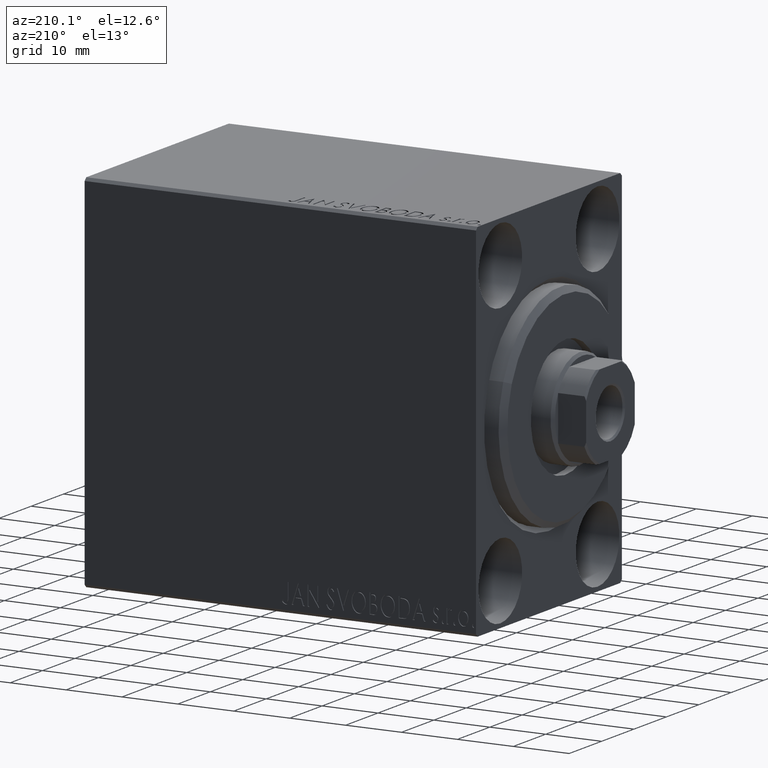
[diagram: clean part render]
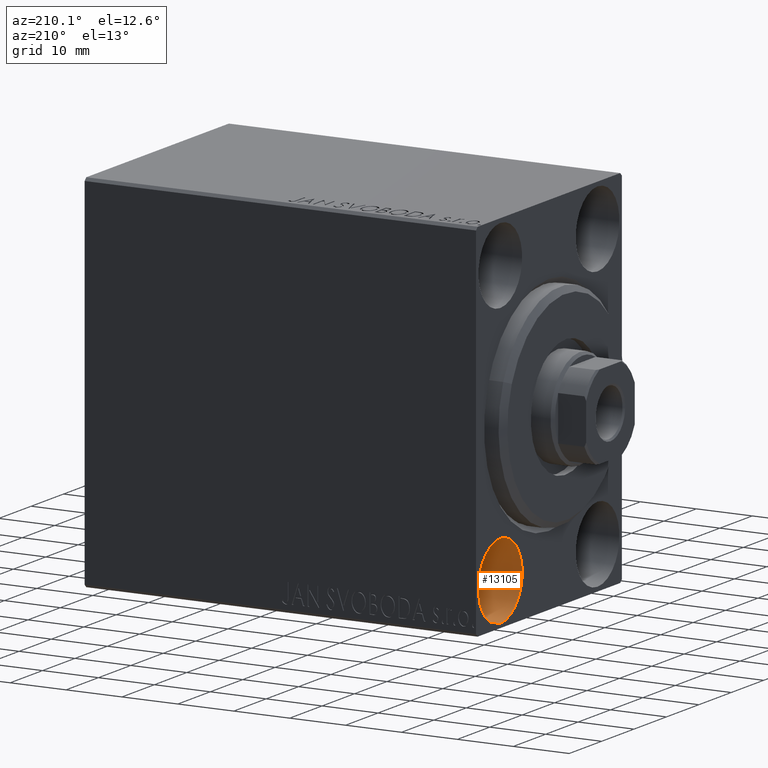
[diagram: same view with one face highlighted and labeled with its STEP entity id]
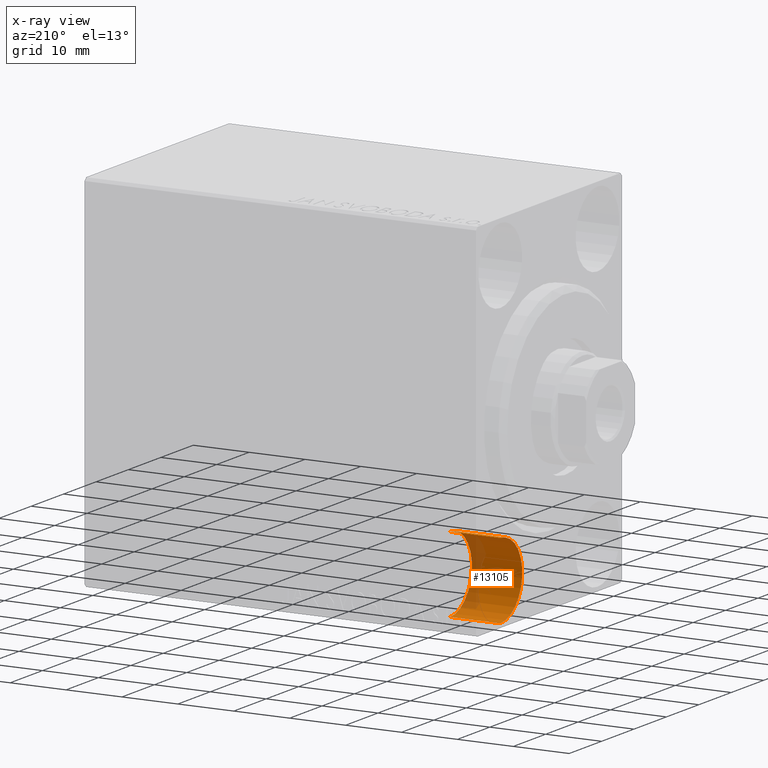
[diagram: x-ray of the same camera — body ghosted, the highlighted face saturated]
A machine part, auxiliary view. The second image highlights one B-rep face of the part: STEP entity #13105.
The next image is the same camera in x-ray: the body ghosted, the highlighted face saturated — about 20% of this face is hidden behind the body in this view.
In plain terms, the highlighted cylindrical surface (partial cylindrical patch) has radius 6.75 mm, axis along (-1, -0, -0).
Its self-contained STEP definition (entity closure, byte-faithful):
#532 = ORIENTED_EDGE ( 'NONE', *, *, #2408, .F. ) ;
#1146 = DIRECTION ( 'NONE',  ( -1.000000000000000000, -0.000000000000000000, -0.000000000000000000 ) ) ;
#1171 = EDGE_CURVE ( 'NONE', #3589, #3817, #3220, .T. ) ;
#2408 = EDGE_CURVE ( 'NONE', #3817, #21852, #26377, .T. ) ;
#3220 = CIRCLE ( 'NONE', #20270, 6.749999999999999112 ) ;
#3589 = VERTEX_POINT ( 'NONE', #11713 ) ;
#3817 = VERTEX_POINT ( 'NONE', #22874 ) ;
#5393 = FACE_OUTER_BOUND ( 'NONE', #37919, .T. ) ;
#5504 = VECTOR ( 'NONE', #31291, 1000.000000000000000 ) ;
#6681 = CARTESIAN_POINT ( 'NONE',  ( 0.000000000000000000, 14.99999999999999645, -18.25000000000000355 ) ) ;
#7230 = ORIENTED_EDGE ( 'NONE', *, *, #36581, .T. ) ;
#8949 = CYLINDRICAL_SURFACE ( 'NONE', #11172, 6.749999999999999112 ) ;
#10624 = EDGE_CURVE ( 'NONE', #3589, #28342, #20838, .T. ) ;
#11172 = AXIS2_PLACEMENT_3D ( 'NONE', #18963, #1146, #24947 ) ;
#11713 = CARTESIAN_POINT ( 'NONE',  ( 9.000000000000000000, 14.99999999999999645, -31.75000000000000000 ) ) ;
#13105 = ADVANCED_FACE ( 'NONE', ( #5393 ), #8949, .F. ) ;
#14390 = AXIS2_PLACEMENT_3D ( 'NONE', #29540, #29316, #43325 ) ;
#18963 = CARTESIAN_POINT ( 'NONE',  ( 9.000000000000000000, 14.99999999999999645, -25.00000000000000000 ) ) ;
#20270 = AXIS2_PLACEMENT_3D ( 'NONE', #22745, #27330, #30658 ) ;
#20838 = LINE ( 'NONE', #25057, #5504 ) ;
#21852 = VERTEX_POINT ( 'NONE', #6681 ) ;
#22745 = CARTESIAN_POINT ( 'NONE',  ( 9.000000000000000000, 14.99999999999999645, -25.00000000000000000 ) ) ;
#22874 = CARTESIAN_POINT ( 'NONE',  ( 9.000000000000000000, 14.99999999999999645, -18.25000000000000355 ) ) ;
#24947 = DIRECTION ( 'NONE',  ( 0.000000000000000000, 0.000000000000000000, 1.000000000000000000 ) ) ;
#25057 = CARTESIAN_POINT ( 'NONE',  ( 9.000000000000000000, 14.99999999999999645, -31.75000000000000000 ) ) ;
#26377 = LINE ( 'NONE', #33273, #40885 ) ;
#27330 = DIRECTION ( 'NONE',  ( -1.000000000000000000, 0.000000000000000000, 0.000000000000000000 ) ) ;
#28342 = VERTEX_POINT ( 'NONE', #29214 ) ;
#29214 = CARTESIAN_POINT ( 'NONE',  ( 0.000000000000000000, 14.99999999999999645, -31.75000000000000000 ) ) ;
#29316 = DIRECTION ( 'NONE',  ( -1.000000000000000000, 0.000000000000000000, 0.000000000000000000 ) ) ;
#29540 = CARTESIAN_POINT ( 'NONE',  ( 0.000000000000000000, 14.99999999999999645, -25.00000000000000000 ) ) ;
#30658 = DIRECTION ( 'NONE',  ( 0.000000000000000000, 0.000000000000000000, 1.000000000000000000 ) ) ;
#31291 = DIRECTION ( 'NONE',  ( -1.000000000000000000, -0.000000000000000000, -0.000000000000000000 ) ) ;
#32178 = CIRCLE ( 'NONE', #14390, 6.749999999999999112 ) ;
#32631 = DIRECTION ( 'NONE',  ( -1.000000000000000000, -0.000000000000000000, -0.000000000000000000 ) ) ;
#33273 = CARTESIAN_POINT ( 'NONE',  ( 9.000000000000000000, 14.99999999999999645, -18.25000000000000355 ) ) ;
#35336 = ORIENTED_EDGE ( 'NONE', *, *, #10624, .T. ) ;
#36581 = EDGE_CURVE ( 'NONE', #28342, #21852, #32178, .T. ) ;
#37919 = EDGE_LOOP ( 'NONE', ( #39483, #35336, #7230, #532 ) ) ;
#39483 = ORIENTED_EDGE ( 'NONE', *, *, #1171, .F. ) ;
#40885 = VECTOR ( 'NONE', #32631, 1000.000000000000000 ) ;
#43325 = DIRECTION ( 'NONE',  ( 0.000000000000000000, 0.000000000000000000, 1.000000000000000000 ) ) ;